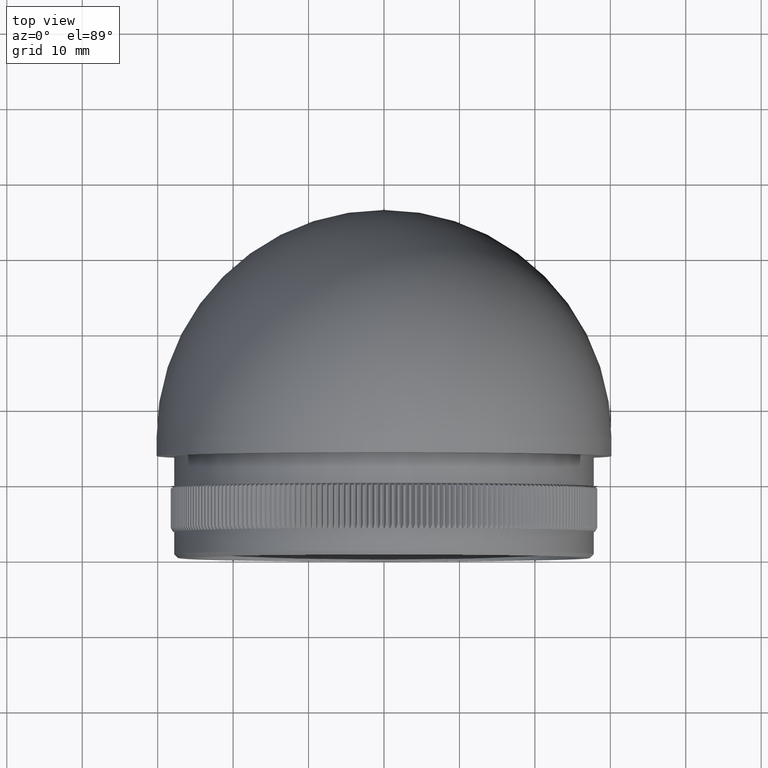
[diagram: clean part render]
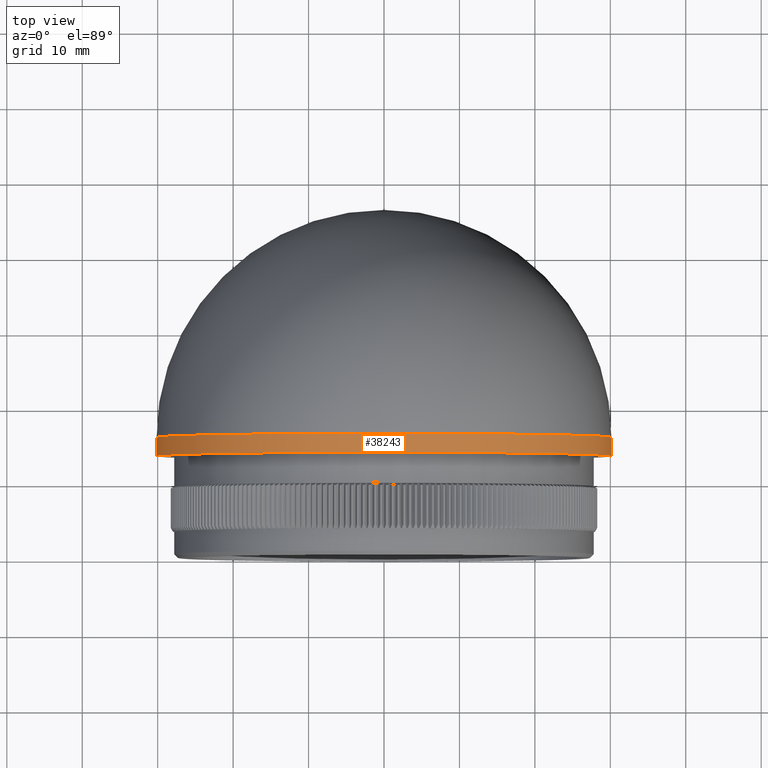
[diagram: same view with one face highlighted and labeled with its STEP entity id]
A machine part, top view. The second image highlights one B-rep face of the part: STEP entity #38243.
In plain terms, the highlighted cylindrical surface (bore or boss wall) has radius 30.15 mm, axis along (-0, -1, -0).
Its self-contained STEP definition (entity closure, byte-faithful):
#987 = DIRECTION ( 'NONE',  ( -1.345799736559849324E-15, -1.000000000000000000, -0.000000000000000000 ) ) ;
#1253 = EDGE_CURVE ( 'NONE', #26275, #26275, #30358, .T. ) ;
#7432 = AXIS2_PLACEMENT_3D ( 'NONE', #39698, #987, #8225 ) ;
#8225 = DIRECTION ( 'NONE',  ( 1.000000000000000000, -1.323337975040348946E-15, 0.000000000000000000 ) ) ;
#9708 = CARTESIAN_POINT ( 'NONE',  ( 30.14999999999999503, 13.50000000000000355, 0.000000000000000000 ) ) ;
#13169 = CARTESIAN_POINT ( 'NONE',  ( 30.15000000000000213, 16.00000000000000000, 0.000000000000000000 ) ) ;
#13491 = AXIS2_PLACEMENT_3D ( 'NONE', #44090, #48101, #28798 ) ;
#16174 = CARTESIAN_POINT ( 'NONE',  ( -3.559640303200794149E-14, 16.00000000000004263, 0.000000000000000000 ) ) ;
#19105 = EDGE_CURVE ( 'NONE', #46601, #46601, #50624, .T. ) ;
#22117 = ORIENTED_EDGE ( 'NONE', *, *, #1253, .T. ) ;
#23609 = DIRECTION ( 'NONE',  ( 1.000000000000000000, -1.380874408737755191E-15, 0.000000000000000000 ) ) ;
#26275 = VERTEX_POINT ( 'NONE', #13169 ) ;
#26715 = EDGE_LOOP ( 'NONE', ( #22117 ) ) ;
#28798 = DIRECTION ( 'NONE',  ( 1.000000000000000000, -1.380874408737755191E-15, 0.000000000000000000 ) ) ;
#29780 = ORIENTED_EDGE ( 'NONE', *, *, #19105, .F. ) ;
#30358 = CIRCLE ( 'NONE', #37884, 30.15000000000003766 ) ;
#32358 = FACE_OUTER_BOUND ( 'NONE', #43199, .T. ) ;
#37884 = AXIS2_PLACEMENT_3D ( 'NONE', #16174, #47141, #23609 ) ;
#38243 = ADVANCED_FACE ( 'NONE', ( #42800, #32358 ), #41576, .T. ) ;
#39698 = CARTESIAN_POINT ( 'NONE',  ( -3.896090237340756244E-14, 13.50000000000004263, 0.000000000000000000 ) ) ;
#41576 = CYLINDRICAL_SURFACE ( 'NONE', #13491, 30.15000000000003766 ) ;
#42800 = FACE_OUTER_BOUND ( 'NONE', #26715, .T. ) ;
#43199 = EDGE_LOOP ( 'NONE', ( #29780 ) ) ;
#44090 = CARTESIAN_POINT ( 'NONE',  ( 0.000000000000000000, 42.44999999999998863, 0.000000000000000000 ) ) ;
#46601 = VERTEX_POINT ( 'NONE', #9708 ) ;
#47141 = DIRECTION ( 'NONE',  ( -1.345799736559849324E-15, -1.000000000000000000, -0.000000000000000000 ) ) ;
#48101 = DIRECTION ( 'NONE',  ( -1.345799736559849324E-15, -1.000000000000000000, -0.000000000000000000 ) ) ;
#50624 = CIRCLE ( 'NONE', #7432, 30.15000000000003411 ) ;